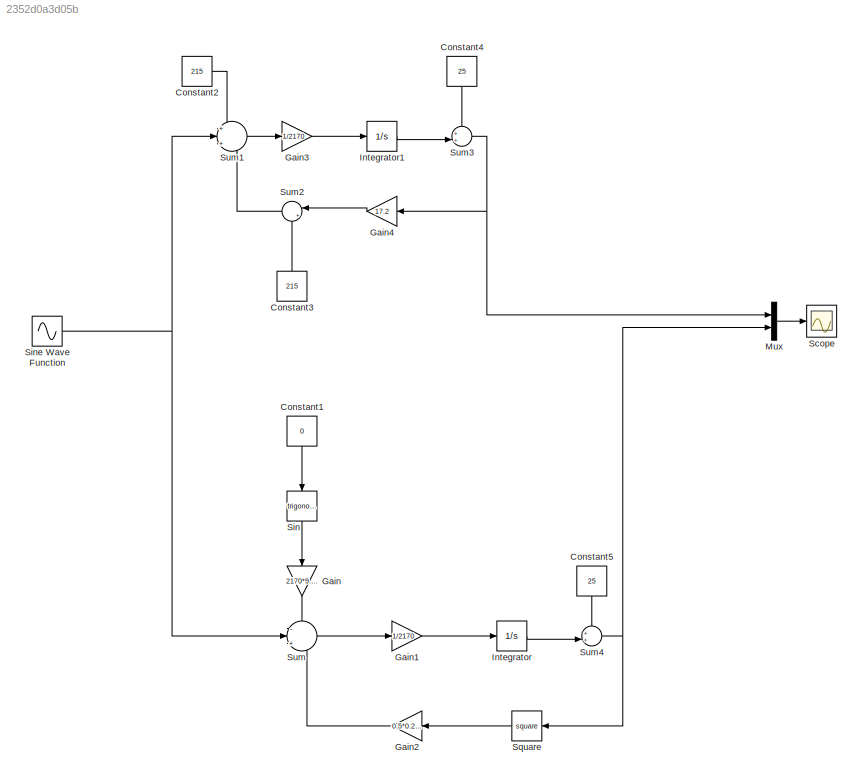
MODEL slx_2352d0a3d05b
KIND model
CONFIG AbsTol = auto
CONFIG EnableMultiTasking = off
CONFIG FixedStep = auto
CONFIG MaxStep = auto
CONFIG MinStep = auto
CONFIG RelTol = 1e-3
CONFIG SampleTimeConstraint = Unconstrained
CONFIG SolverName = VariableStepAuto
CONFIG StartTime = 0.0
CONFIG StopTime = 2400
BLOCK [Constant] Constant1
  NameLocation = left
  Value = 0
BLOCK [Constant] Constant2
  Value = 215
BLOCK [Constant] Constant3
  NameLocation = right
  Value = 215
BLOCK [Constant] Constant4
  NameLocation = left
  Value = 25
BLOCK [Constant] Constant5
  NameLocation = left
  Value = 25
BLOCK [Gain] Gain
  Gain = 2170*9.81
  NameLocation = left
BLOCK [Gain] Gain1
  Gain = 1/2170
BLOCK [Gain] Gain2
  Gain = 0.5*0.24*2.34*1.225
  NameLocation = top
BLOCK [Gain] Gain3
  Gain = 1/2170
BLOCK [Gain] Gain4
  Gain = 17.2
  NameLocation = top
BLOCK [Integrator] Integrator
  Ports = [1, 1]
BLOCK [Integrator] Integrator1
  Ports = [1, 1]
BLOCK [Mux] Mux
  DisplayOption = bar
  Inputs = 2
  Ports = [2, 1]
BLOCK [Scope] Scope
  Floating = off
  NumInputPorts = 1
  Ports = [1]
  ScopeSpecificationString = Simulink.scopes.TimeScopeBlockCfg('CurrentConfiguration', extmgr.ConfigurationSet(extmgr.Configuration('Core','General UI',true),extmgr.Configuration('Core','Source UI',true),extmgr.Configuration('Sources','WiredSimulink',true),extmgr.Configuration('Visuals','Time Domain',true,'SerializedDisplays',{struct('MinYLimReal','-17.2218','MaxYLimReal','57.71455','YLabelReal','','MinYLimMag','0.00000','Max...<+1409ch>
BLOCK [Trigonometry] Sin
  NameLocation = left
  Ports = [1, 1]
BLOCK [Sin] Sine Wave Function
  Amplitude = 5000
  Frequency = (2*pi)/30
  Ports = [0, 1]
  SampleTime = 0.001
BLOCK [Math] Square
  NameLocation = top
  Operator = square
  Ports = [1, 1]
BLOCK [Sum] Sum
  Inputs = -|+|-
  Ports = [3, 1]
BLOCK [Sum] Sum1
  Inputs = +|+|-
  Ports = [3, 1]
BLOCK [Sum] Sum2
  Inputs = |+-
  NameLocation = top
  Ports = [2, 1]
BLOCK [Sum] Sum3
  Inputs = ++|
  Ports = [2, 1]
BLOCK [Sum] Sum4
  Inputs = ++|
  Ports = [2, 1]
LINE Constant1:1 -> Sin:1
LINE Constant2:1 -> Sum1:1
LINE Constant3:1 -> Sum2:2
LINE Constant4:1 -> Sum3:1
LINE Constant5:1 -> Sum4:1
LINE Gain1:1 -> Integrator:1
LINE Gain2:1 -> Sum:3
LINE Gain3:1 -> Integrator1:1
LINE Gain4:1 -> Sum2:1
LINE Gain:1 -> Sum:1
LINE Integrator1:1 -> Sum3:2
LINE Integrator:1 -> Sum4:2
LINE Mux:1 -> Scope:1
LINE Sin:1 -> Gain:1
NET Sine Wave Function:1 -> Sum1:2, Sum:2
LINE Square:1 -> Gain2:1
LINE Sum1:1 -> Gain3:1
LINE Sum2:1 -> Sum1:3
NET Sum3:1 -> Gain4:1, Mux:1
NET Sum4:1 -> Mux:2, Square:1
LINE Sum:1 -> Gain1:1
note: NET lines group one-source signal fan-out (src -> all destinations, sorted); 1:1 wires keep LINE
